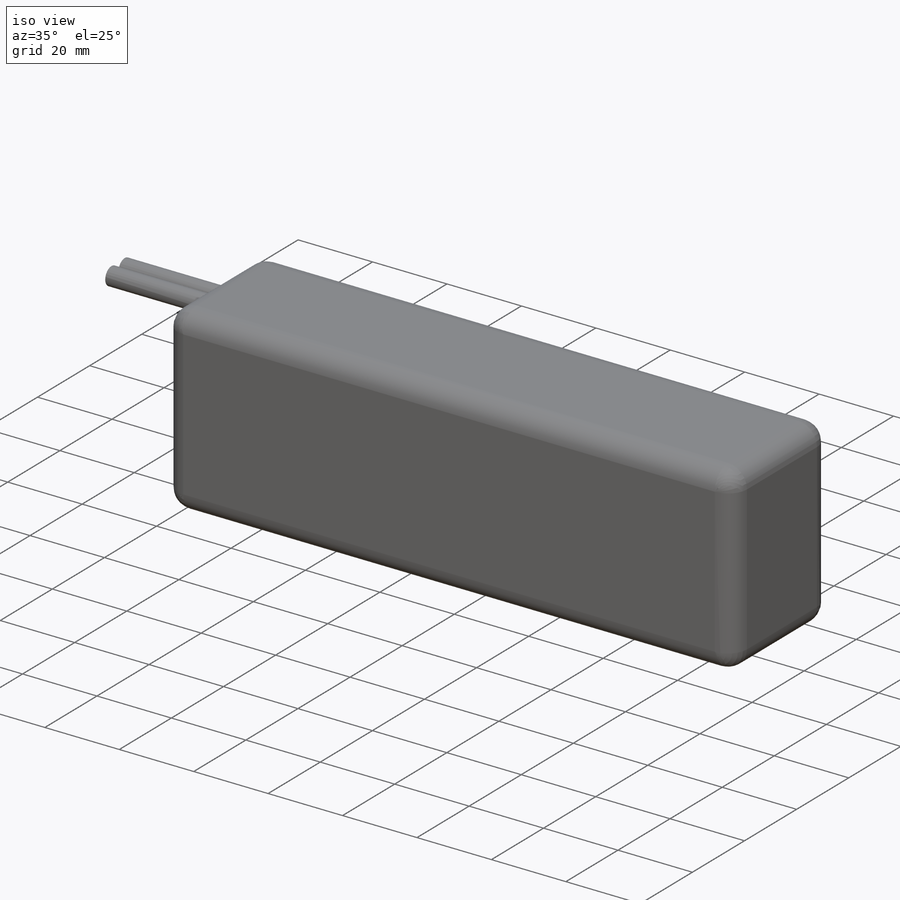
[diagram: iso view]
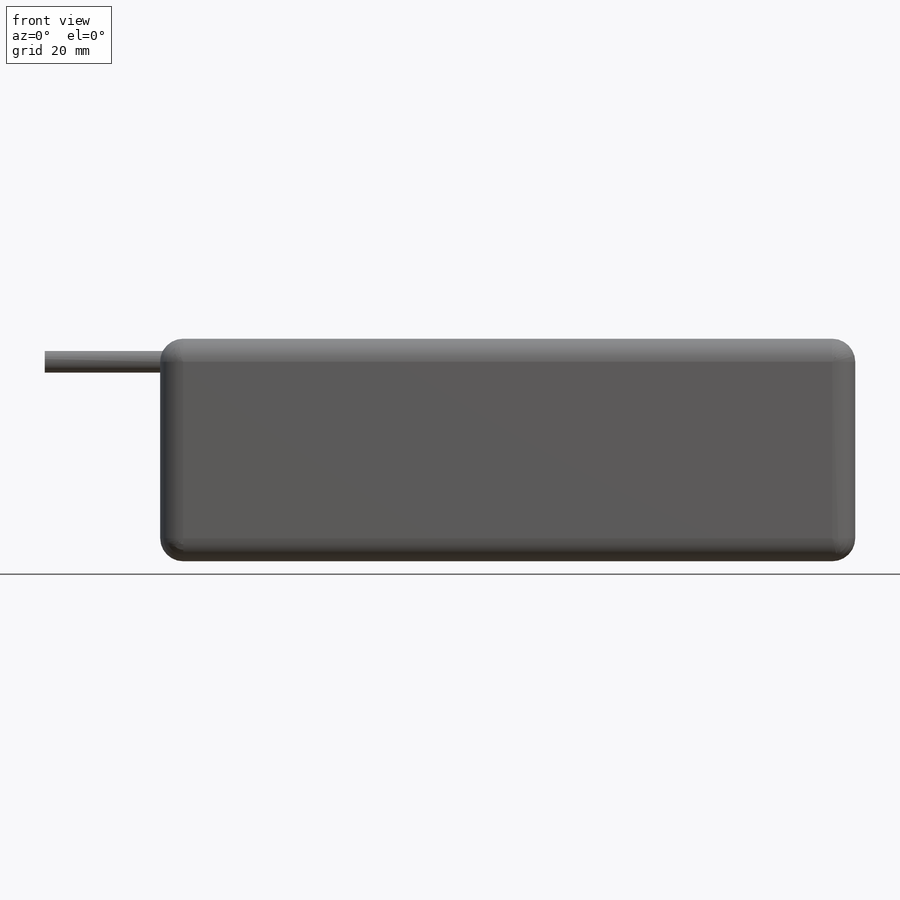
[diagram: front view]
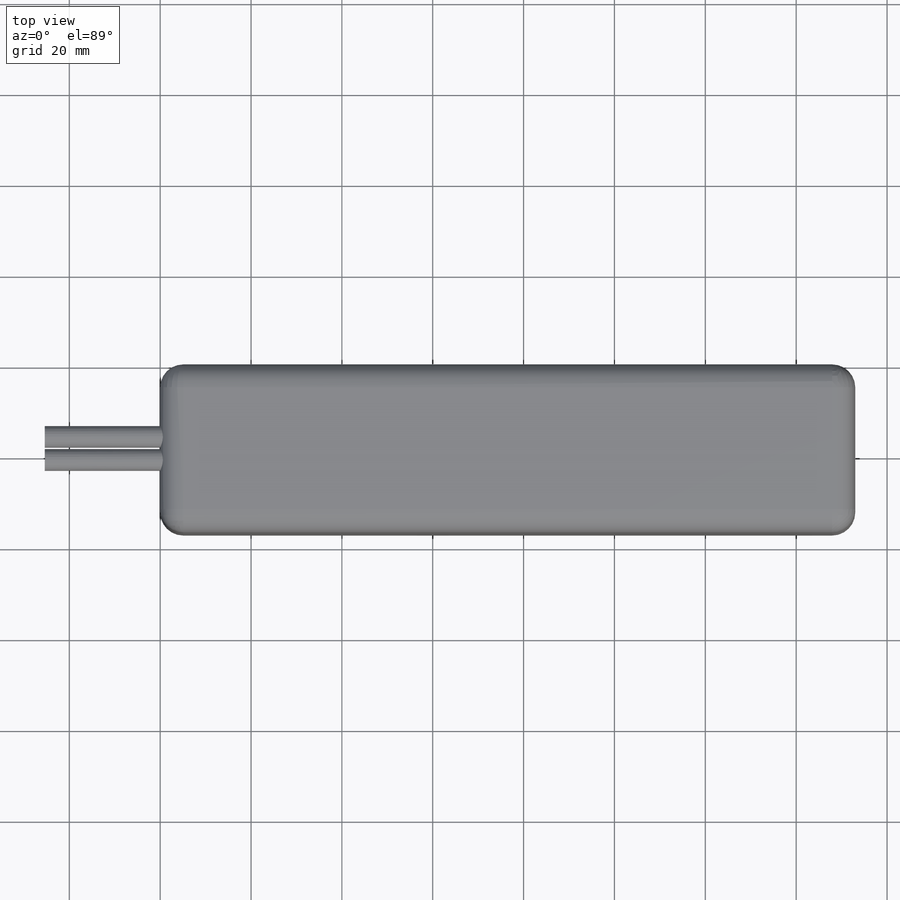
[diagram: top view]
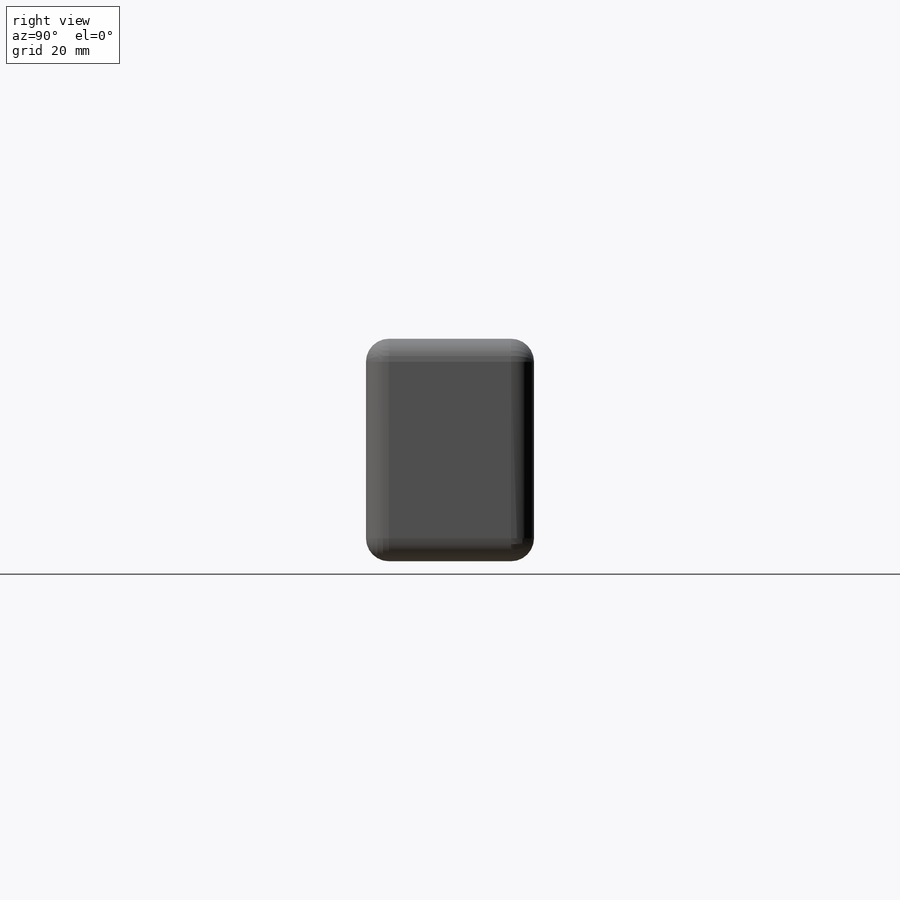
[diagram: right view]
SOLIDWORKS PART (.sldprt)
format: sldprt  version: not decoded by parser v0  size: 256,512 bytes
history: native  units: mm
features: sketch x2, extrude x2, material x1, fillet x1 (+13 scaffold rows collapsed)
feature tree (19):
  scaffold x13  (default folders/planes/origin — collapsed)
  material  "Material <not specified>"
  sketch  "Sketch1"  dims[c1.D1=~29.977835mm c1.D2=~97.999831mm c2.D1=37.0mm c2.D2=153.0mm]
  extrude  "Boss-Extrude1"  Depth=49mm
  fillet  "Fillet1"  Radius=5.08mm
  sketch  "Sketch2"  dims[D1=~0.092932mm D2=2.54mm D3=2.54mm]
  extrude  "Boss-Extrude2"  Depth=25.4mm
decode coverage: 5 of 5 modeling features carry decoded parameters
note: ~ marks probable driven/reference dimensions
note: suppression state not decoded; provenance and decode notes live in map.json
